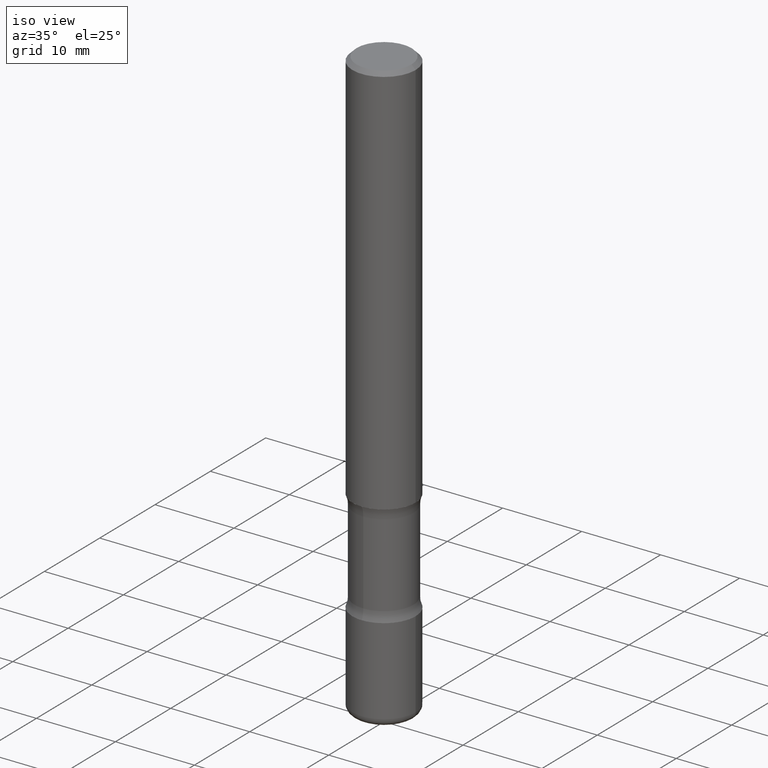
[diagram: clean part render]
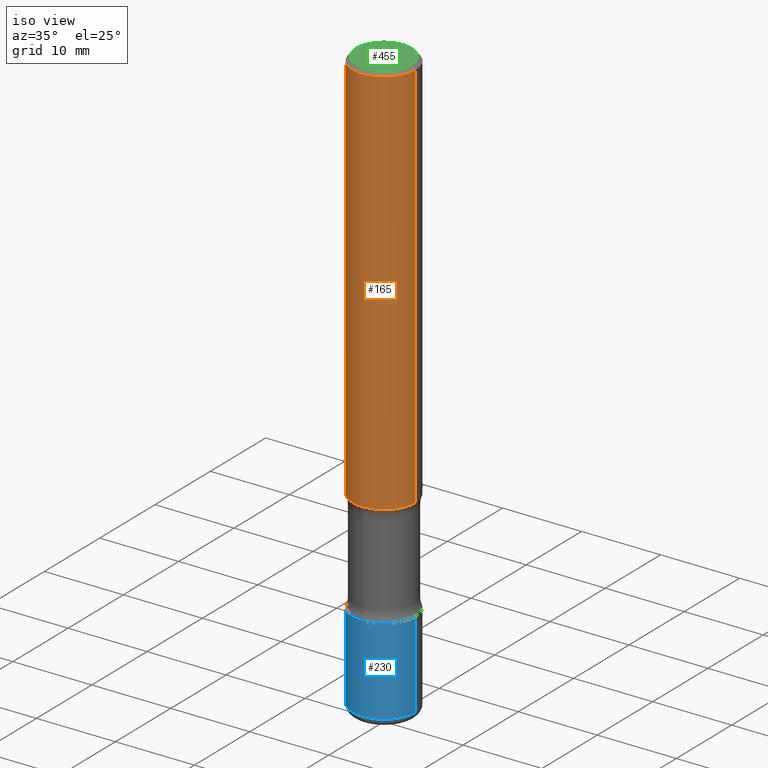
[diagram: same view with three faces highlighted in distinct colors, each labeled with its STEP entity id]
A machine part, iso view with three faces highlighted in distinct colors.
Their STEP definitions:

[orange] entity #165 — the highlighted cylindrical surface (partial cylindrical patch) has radius 4.0005 mm, axis along (-0, 0, 1).
#2 = VERTEX_POINT ( 'NONE', #127 ) ;
#8 = VERTEX_POINT ( 'NONE', #423 ) ;
#13 = AXIS2_PLACEMENT_3D ( 'NONE', #560, #169, #509 ) ;
#44 = EDGE_LOOP ( 'NONE', ( #471, #213, #90, #235 ) ) ;
#53 = VECTOR ( 'NONE', #303, 39.37007874015748143 ) ;
#66 = VERTEX_POINT ( 'NONE', #77 ) ;
#70 = EDGE_CURVE ( 'NONE', #66, #2, #478, .T. ) ;
#72 = VECTOR ( 'NONE', #536, 39.37007874015748143 ) ;
#77 = CARTESIAN_POINT ( 'NONE',  ( -0.1575000000000001676, -2.352300512322635166E-15, -1.968499999999999694 ) ) ;
#90 = ORIENTED_EDGE ( 'NONE', *, *, #150, .T. ) ;
#119 = CYLINDRICAL_SURFACE ( 'NONE', #243, 0.1575000000000000289 ) ;
#127 = CARTESIAN_POINT ( 'NONE',  ( 0.1575000000000001676, -7.972797637248319976E-15, -1.968499999999999694 ) ) ;
#130 = AXIS2_PLACEMENT_3D ( 'NONE', #306, #472, #533 ) ;
#150 = EDGE_CURVE ( 'NONE', #2, #8, #463, .T. ) ;
#165 = ADVANCED_FACE ( 'NONE', ( #370 ), #119, .T. ) ;
#169 = DIRECTION ( 'NONE',  ( -2.445468806185136597E-29, 3.491481338843145583E-15, 1.000000000000000000 ) ) ;
#213 = ORIENTED_EDGE ( 'NONE', *, *, #70, .T. ) ;
#235 = ORIENTED_EDGE ( 'NONE', *, *, #550, .F. ) ;
#236 = DIRECTION ( 'NONE',  ( 1.000000000000000000, -6.982962677686267499E-15, 4.876176775795935232E-29 ) ) ;
#240 = CARTESIAN_POINT ( 'NONE',  ( -0.1574999999999999178, 1.029986994958723590E-15, -0.02000000000000000042 ) ) ;
#243 = AXIS2_PLACEMENT_3D ( 'NONE', #491, #379, #236 ) ;
#282 = EDGE_CURVE ( 'NONE', #66, #546, #348, .T. ) ;
#290 = CARTESIAN_POINT ( 'NONE',  ( 0.1575000000000000289, -1.099816621735587283E-15, 7.679978421878599434E-30 ) ) ;
#303 = DIRECTION ( 'NONE',  ( -2.445468806185136877E-29, 3.491481338843145188E-15, 1.000000000000000000 ) ) ;
#306 = CARTESIAN_POINT ( 'NONE',  ( 4.890937612370273159E-31, -6.982962677686291609E-17, -0.02000000000000000042 ) ) ;
#348 = LINE ( 'NONE', #508, #53 ) ;
#370 = FACE_OUTER_BOUND ( 'NONE', #44, .T. ) ;
#379 = DIRECTION ( 'NONE',  ( -2.445468806185136597E-29, 3.491481338843145583E-15, 1.000000000000000000 ) ) ;
#423 = CARTESIAN_POINT ( 'NONE',  ( 0.1574999999999999178, -1.150358061425878486E-15, -0.02000000000000000042 ) ) ;
#463 = LINE ( 'NONE', #290, #72 ) ;
#471 = ORIENTED_EDGE ( 'NONE', *, *, #282, .F. ) ;
#472 = DIRECTION ( 'NONE',  ( -2.445468806185136597E-29, 3.491481338843145583E-15, 1.000000000000000000 ) ) ;
#477 = CIRCLE ( 'NONE', #130, 0.1574999999999999178 ) ;
#478 = CIRCLE ( 'NONE', #13, 0.1575000000000001676 ) ;
#491 = CARTESIAN_POINT ( 'NONE',  ( 0.000000000000000000, 0.000000000000000000, 0.000000000000000000 ) ) ;
#508 = CARTESIAN_POINT ( 'NONE',  ( -0.1575000000000000289, 1.119104808822157998E-15, -7.747322767151478386E-30 ) ) ;
#509 = DIRECTION ( 'NONE',  ( 1.000000000000000000, -6.982962677686267499E-15, 0.000000000000000000 ) ) ;
#533 = DIRECTION ( 'NONE',  ( 1.000000000000000000, -6.982962677686266711E-15, 0.000000000000000000 ) ) ;
#536 = DIRECTION ( 'NONE',  ( -2.445468806185136877E-29, 3.491481338843145188E-15, 1.000000000000000000 ) ) ;
#546 = VERTEX_POINT ( 'NONE', #240 ) ;
#550 = EDGE_CURVE ( 'NONE', #546, #8, #477, .T. ) ;
#560 = CARTESIAN_POINT ( 'NONE',  ( 4.813905344975440714E-29, -6.872981015512730918E-15, -1.968499999999999694 ) ) ;

[blue] entity #230 — the highlighted cylindrical surface (partial cylindrical patch) has radius 4.0005 mm, axis along (-0, 0, 1).
#10 = CARTESIAN_POINT ( 'NONE',  ( 0.1575000000000001399, -9.760086934602125539E-15, -2.480399999999999494 ) ) ;
#11 = VERTEX_POINT ( 'NONE', #387 ) ;
#12 = EDGE_CURVE ( 'NONE', #11, #255, #383, .T. ) ;
#33 = CARTESIAN_POINT ( 'NONE',  ( 7.124628819939776708E-29, -1.017208173258561931E-14, -2.913399999999999768 ) ) ;
#34 = CARTESIAN_POINT ( 'NONE',  ( -0.1575000000000001399, -8.297071213903919899E-15, -2.480399999999999494 ) ) ;
#35 = AXIS2_PLACEMENT_3D ( 'NONE', #33, #248, #557 ) ;
#60 = CYLINDRICAL_SURFACE ( 'NONE', #330, 0.1575000000000001399 ) ;
#104 = LINE ( 'NONE', #281, #391 ) ;
#116 = VERTEX_POINT ( 'NONE', #34 ) ;
#187 = EDGE_CURVE ( 'NONE', #255, #408, #421, .T. ) ;
#203 = DIRECTION ( 'NONE',  ( -2.445468806185136877E-29, 3.491481338843145188E-15, 1.000000000000000000 ) ) ;
#220 = EDGE_CURVE ( 'NONE', #11, #116, #104, .T. ) ;
#226 = ORIENTED_EDGE ( 'NONE', *, *, #428, .F. ) ;
#230 = ADVANCED_FACE ( 'NONE', ( #331 ), #60, .T. ) ;
#248 = DIRECTION ( 'NONE',  ( -2.445468806185136597E-29, 3.491481338843145583E-15, 1.000000000000000000 ) ) ;
#255 = VERTEX_POINT ( 'NONE', #475 ) ;
#258 = CIRCLE ( 'NONE', #339, 0.1575000000000001399 ) ;
#263 = DIRECTION ( 'NONE',  ( -2.445468806185136597E-29, 3.491481338843145583E-15, 1.000000000000000000 ) ) ;
#266 = CARTESIAN_POINT ( 'NONE',  ( 6.065740826861612418E-29, -8.660270312866537270E-15, -2.480399999999999494 ) ) ;
#281 = CARTESIAN_POINT ( 'NONE',  ( -0.1575000000000001399, 1.119104808822158787E-15, -7.747322767151482590E-30 ) ) ;
#286 = ORIENTED_EDGE ( 'NONE', *, *, #187, .T. ) ;
#305 = EDGE_LOOP ( 'NONE', ( #372, #558, #286, #226 ) ) ;
#330 = AXIS2_PLACEMENT_3D ( 'NONE', #406, #499, #496 ) ;
#331 = FACE_OUTER_BOUND ( 'NONE', #305, .T. ) ;
#339 = AXIS2_PLACEMENT_3D ( 'NONE', #266, #263, #520 ) ;
#367 = CARTESIAN_POINT ( 'NONE',  ( 0.1575000000000001399, -1.099816621735587875E-15, 7.679978421878605039E-30 ) ) ;
#372 = ORIENTED_EDGE ( 'NONE', *, *, #220, .F. ) ;
#383 = CIRCLE ( 'NONE', #35, 0.1575000000000001399 ) ;
#387 = CARTESIAN_POINT ( 'NONE',  ( -0.1575000000000003064, -9.052976923763458555E-15, -2.913399999999999768 ) ) ;
#391 = VECTOR ( 'NONE', #449, 39.37007874015748143 ) ;
#406 = CARTESIAN_POINT ( 'NONE',  ( 0.000000000000000000, 0.000000000000000000, 0.000000000000000000 ) ) ;
#408 = VERTEX_POINT ( 'NONE', #10 ) ;
#421 = LINE ( 'NONE', #367, #451 ) ;
#428 = EDGE_CURVE ( 'NONE', #116, #408, #258, .T. ) ;
#449 = DIRECTION ( 'NONE',  ( -2.445468806185136877E-29, 3.491481338843145188E-15, 1.000000000000000000 ) ) ;
#451 = VECTOR ( 'NONE', #203, 39.37007874015748143 ) ;
#475 = CARTESIAN_POINT ( 'NONE',  ( 0.1575000000000003064, -1.127189835432120758E-14, -2.913399999999999768 ) ) ;
#496 = DIRECTION ( 'NONE',  ( 1.000000000000000000, -6.982962677686265922E-15, 4.876176775795935232E-29 ) ) ;
#499 = DIRECTION ( 'NONE',  ( -2.445468806185136597E-29, 3.491481338843145583E-15, 1.000000000000000000 ) ) ;
#520 = DIRECTION ( 'NONE',  ( 1.000000000000000000, -6.982962677686268288E-15, 0.000000000000000000 ) ) ;
#557 = DIRECTION ( 'NONE',  ( 1.000000000000000000, -6.982962677686268288E-15, 0.000000000000000000 ) ) ;
#558 = ORIENTED_EDGE ( 'NONE', *, *, #12, .T. ) ;

[green] entity #455 — the highlighted planar face has unit normal (0, -0, -1).
#14 = CARTESIAN_POINT ( 'NONE',  ( 9.601573681818610811E-16, 0.1374999999999999278, -4.779444278458821021E-16 ) ) ;
#41 = ORIENTED_EDGE ( 'NONE', *, *, #559, .T. ) ;
#42 = PLANE ( 'NONE',  #488 ) ;
#65 = CIRCLE ( 'NONE', #378, 0.1374999999999999278 ) ;
#102 = EDGE_CURVE ( 'NONE', #334, #328, #65, .T. ) ;
#115 = DIRECTION ( 'NONE',  ( 1.000000000000000000, -6.982962677686265922E-15, 4.876173381029102845E-29 ) ) ;
#124 = CARTESIAN_POINT ( 'NONE',  ( -0.1374999999999999278, 9.950721815702923357E-16, 4.268512490093574228E-18 ) ) ;
#146 = CARTESIAN_POINT ( 'NONE',  ( -1.043851414335219820E-46, 1.490343170380447200E-32, 4.268512490100411279E-18 ) ) ;
#168 = DIRECTION ( 'NONE',  ( -2.445468806185136597E-29, 3.491481338843145583E-15, 1.000000000000000000 ) ) ;
#173 = AXIS2_PLACEMENT_3D ( 'NONE', #146, #168, #115 ) ;
#217 = DIRECTION ( 'NONE',  ( 2.438088387897960049E-29, -3.491481338843145188E-15, -1.000000000000000000 ) ) ;
#246 = DIRECTION ( 'NONE',  ( 1.000000000000000000, -6.982962677686265922E-15, 4.876173381029102845E-29 ) ) ;
#254 = DIRECTION ( 'NONE',  ( -2.445468806185136597E-29, 3.491481338843145583E-15, 1.000000000000000000 ) ) ;
#328 = VERTEX_POINT ( 'NONE', #429 ) ;
#334 = VERTEX_POINT ( 'NONE', #124 ) ;
#340 = CIRCLE ( 'NONE', #173, 0.1374999999999999278 ) ;
#341 = CARTESIAN_POINT ( 'NONE',  ( -1.043851414335219820E-46, 1.490343170380447200E-32, 4.268512490100411279E-18 ) ) ;
#378 = AXIS2_PLACEMENT_3D ( 'NONE', #341, #254, #246 ) ;
#388 = ORIENTED_EDGE ( 'NONE', *, *, #102, .T. ) ;
#429 = CARTESIAN_POINT ( 'NONE',  ( 0.1374999999999999278, -1.046838268059731900E-15, 4.268512490107428597E-18 ) ) ;
#455 = ADVANCED_FACE ( 'NONE', ( #484 ), #42, .F. ) ;
#469 = EDGE_LOOP ( 'NONE', ( #388, #41 ) ) ;
#479 = DIRECTION ( 'NONE',  ( -1.000000000000000000, 6.982962677686265922E-15, -4.876176775795935793E-29 ) ) ;
#484 = FACE_OUTER_BOUND ( 'NONE', #469, .T. ) ;
#488 = AXIS2_PLACEMENT_3D ( 'NONE', #14, #217, #479 ) ;
#559 = EDGE_CURVE ( 'NONE', #328, #334, #340, .T. ) ;